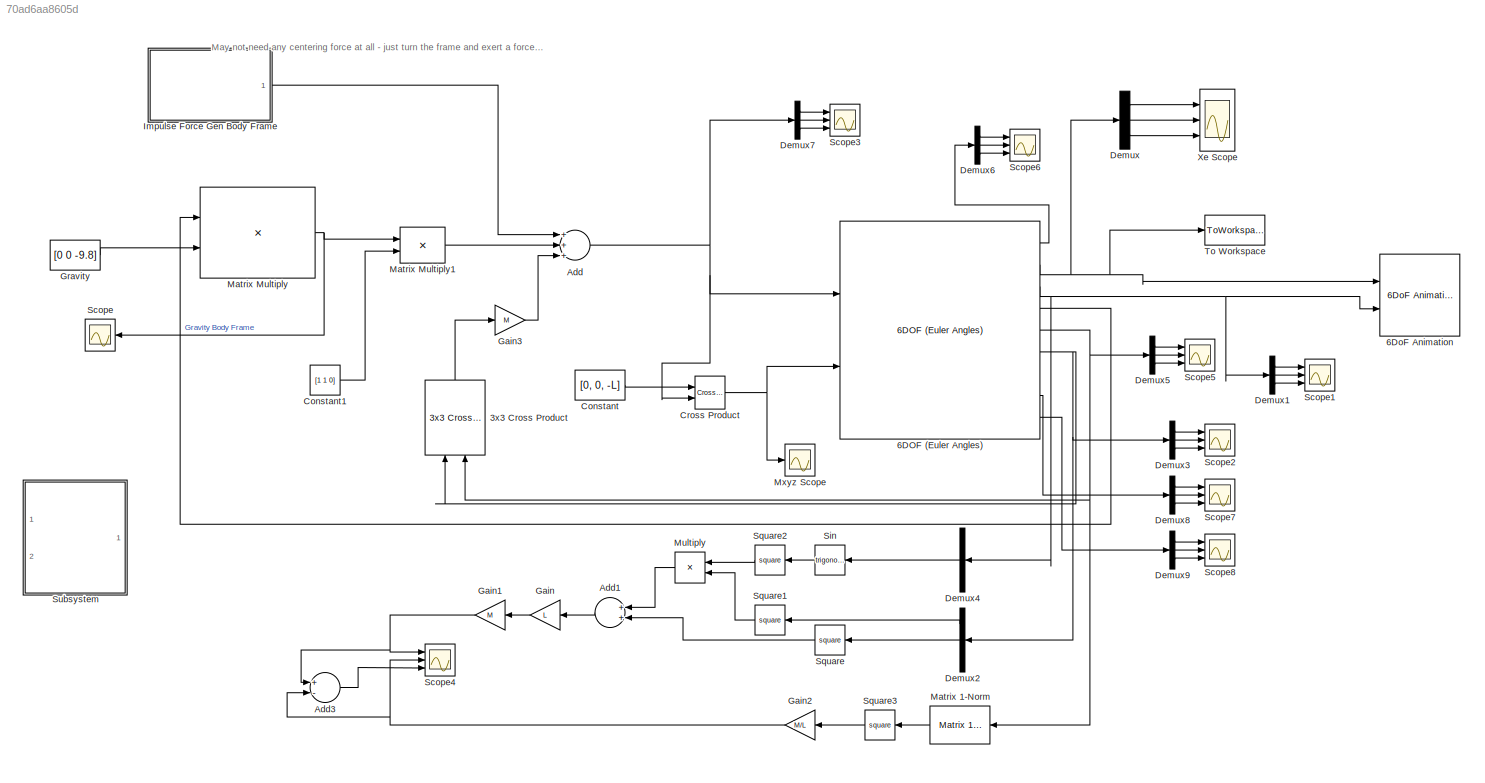
MODEL slx_70ad6aa8605d
KIND model
CONFIG AbsTol = auto
CONFIG EnableMultiTasking = off
CONFIG FixedStep = auto
CONFIG MaxStep = auto
CONFIG MinStep = auto
CONFIG RelTol = 1e-9
CONFIG SampleTimeConstraint = Unconstrained
CONFIG Solver = VariableStepAuto
CONFIG SolverName = VariableStepAuto
CONFIG StartTime = 0.0
CONFIG StopTime = 6
WORKSPACE source: MAT-file member
WORKSPACE H = 0.4
BLOCK [Reference] 3x3 Cross Product  REF=sharedutil/3x3 Cross Product
  Ports = [2, 1]
  SourceBlock = sharedutil/3x3 Cross Product
  SourceProductBaseCode = AE
  SourceProductName = Aerospace Blockset
  SourceType = CrossProduct
BLOCK [Reference] 6DOF (Euler Angles)  REF=shared6dof/6DOF (Euler Angles)
  Ports = [2, 9]
  SourceBlock = shared6dof/6DOF (Euler Angles)
  SourceProductBaseCode = AE
  SourceProductName = Aerospace Blockset
  SourceType = 6DOF EoM (Body Axis)
BLOCK [Reference] 6DoF Animation  REF=aerolibanim/6DoF Animation
  Commented = on
  Ports = [2]
  SourceBlock = aerolibanim/6DoF Animation
  SourceProductBaseCode = AE
  SourceProductName = Aerospace Blockset
  SourceType = 6DoF_Animation
BLOCK [Sum] Add
  InputSameDT = off
  Inputs = +++
  OutDataTypeStr = Inherit: Inherit via internal rule
  Ports = [3, 1]
  SaturateOnIntegerOverflow = off
BLOCK [Sum] Add1
  Commented = on
  InputSameDT = off
  Inputs = 2
  OutDataTypeStr = Inherit: Inherit via internal rule
  Ports = [2, 1]
  SaturateOnIntegerOverflow = off
BLOCK [Sum] Add3
  Commented = on
  InputSameDT = off
  Inputs = +-
  OutDataTypeStr = Inherit: Inherit via internal rule
  Ports = [2, 1]
  SaturateOnIntegerOverflow = off
BLOCK [Constant] Constant
  Value = [0, 0, -L]
BLOCK [Constant] Constant1
  Value = [1 1 0]
BLOCK [Reference] Cross Product  REF=vrlib/Utilities/Cross Product
  Ports = [2, 1]
  SourceBlock = vrlib/Utilities/Cross Product
  SourceProductBaseCode = VR
  SourceProductName = Simulink 3D Animation
  SourceType = Cross Product
BLOCK [Demux] Demux
  DisplayOption = bar
  Outputs = 3
  Ports = [1, 3]
BLOCK [Demux] Demux1
  DisplayOption = bar
  Outputs = 3
  Ports = [1, 3]
BLOCK [Demux] Demux2
  Commented = on
  DisplayOption = bar
  Outputs = 3
  Ports = [1, 3]
BLOCK [Demux] Demux3
  DisplayOption = bar
  Outputs = 3
  Ports = [1, 3]
BLOCK [Demux] Demux4
  Commented = on
  DisplayOption = bar
  Outputs = 3
  Ports = [1, 3]
BLOCK [Demux] Demux5
  DisplayOption = bar
  Outputs = 3
  Ports = [1, 3]
BLOCK [Demux] Demux6
  DisplayOption = bar
  Outputs = 3
  Ports = [1, 3]
BLOCK [Demux] Demux7
  DisplayOption = bar
  Outputs = 3
  Ports = [1, 3]
BLOCK [Demux] Demux8
  DisplayOption = bar
  Outputs = 3
  Ports = [1, 3]
BLOCK [Demux] Demux9
  DisplayOption = bar
  Outputs = 3
  Ports = [1, 3]
BLOCK [Gain] Gain
  Commented = on
  Gain = L
  OutDataTypeStr = Inherit: Inherit via internal rule
  ParamDataTypeStr = Inherit: Inherit via internal rule
  SaturateOnIntegerOverflow = off
BLOCK [Gain] Gain1
  Commented = on
  Gain = M
  OutDataTypeStr = Inherit: Inherit via internal rule
  ParamDataTypeStr = Inherit: Inherit via internal rule
  SaturateOnIntegerOverflow = off
BLOCK [Gain] Gain2
  Commented = on
  Gain = M/L
  OutDataTypeStr = Inherit: Inherit via internal rule
  ParamDataTypeStr = Inherit: Inherit via internal rule
  SaturateOnIntegerOverflow = off
BLOCK [Gain] Gain3
  Gain = M
  OutDataTypeStr = Inherit: Inherit via internal rule
  ParamDataTypeStr = Inherit: Inherit via internal rule
  SaturateOnIntegerOverflow = off
BLOCK [Constant] Gravity
  Value = [0 0 -9.8]
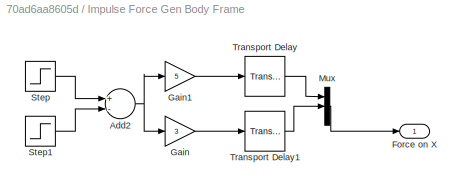
BLOCK [SubSystem] Impulse Force Gen Body Frame
  Ports = [0, 1]
  RequestExecContextInheritance = off
BLOCK [Sum] Impulse Force Gen Body Frame/Add2
  InputSameDT = off
  Inputs = +-
  OutDataTypeStr = Inherit: Inherit via internal rule
  Ports = [2, 1]
  SaturateOnIntegerOverflow = off
BLOCK [Outport] Impulse Force Gen Body Frame/Force on X
  IconDisplay = Port number
BLOCK [Gain] Impulse Force Gen Body Frame/Gain
  Gain = 3
  OutDataTypeStr = Inherit: Inherit via internal rule
  ParamDataTypeStr = Inherit: Inherit via internal rule
  SaturateOnIntegerOverflow = off
BLOCK [Gain] Impulse Force Gen Body Frame/Gain1
  Gain = 5
  OutDataTypeStr = Inherit: Inherit via internal rule
  ParamDataTypeStr = Inherit: Inherit via internal rule
  SaturateOnIntegerOverflow = off
BLOCK [Mux] Impulse Force Gen Body Frame/Mux
  DisplayOption = bar
  Inputs = 3
  Ports = [3, 1]
BLOCK [Step] Impulse Force Gen Body Frame/Step
  SampleTime = 0
BLOCK [Step] Impulse Force Gen Body Frame/Step1
  SampleTime = 0
  Time = 1.5
BLOCK [TransportDelay] Impulse Force Gen Body Frame/Transport Delay
  DelayTime = 0
  Ports = [1, 1]
BLOCK [TransportDelay] Impulse Force Gen Body Frame/Transport Delay1
  DelayTime = 0.3
  Ports = [1, 1]
BLOCK [Reference] Matrix 1-Norm  REF=dspmtrx3/Matrix 
1-Norm
  Commented = on
  Ports = [1, 1]
  SourceBlock = dspmtrx3/Matrix \n1-Norm
  SourceProductBaseCode = DS
  SourceProductName = DSP System Toolbox
  SourceType = Matrix 1-Norm
BLOCK [Product] Matrix Multiply
  InputSameDT = off
  Multiplication = Matrix(*)
  OutDataTypeStr = Inherit: Inherit via internal rule
  Ports = [2, 1]
  RndMeth = Floor
  SaturateOnIntegerOverflow = off
BLOCK [Product] Matrix Multiply1
  InputSameDT = off
  OutDataTypeStr = Inherit: Inherit via internal rule
  Ports = [2, 1]
  RndMeth = Floor
  SaturateOnIntegerOverflow = off
BLOCK [Product] Multiply
  Commented = on
  InputSameDT = off
  OutDataTypeStr = Inherit: Inherit via internal rule
  Ports = [2, 1]
  RndMeth = Floor
  SaturateOnIntegerOverflow = off
BLOCK [Scope] Mxyz Scope
  Floating = off
  NumInputPorts = 1
  Ports = [1]
  ScopeSpecificationString = Simulink.scopes.TimeScopeBlockCfg('CurrentConfiguration', extmgr.ConfigurationSet(extmgr.Configuration('Core','General UI',true),extmgr.Configuration('Core','Source UI',true),extmgr.Configuration('Sources','WiredSimulink',true,'DataLoggingVariableName','ScopeData2'),extmgr.Configuration('Visuals','Time Domain',true,'SerializedDisplays',{struct('MinYLimReal','-9.87171','MaxYLimReal','8.84538','YLab...<+1456ch>
BLOCK [Scope] Scope
  Floating = off
  NumInputPorts = 1
  Ports = [1]
  ScopeSpecificationString = Simulink.scopes.TimeScopeBlockCfg('CurrentConfiguration', extmgr.ConfigurationSet(extmgr.Configuration('Core','General UI',true),extmgr.Configuration('Core','Source UI',true),extmgr.Configuration('Sources','WiredSimulink',true,'DataLoggingVariableName','ScopeData5'),extmgr.Configuration('Visuals','Time Domain',true,'SerializedDisplays',{struct('MinYLimReal','-12.04183','MaxYLimReal','10.37649','YL...<+1509ch>
BLOCK [Scope] Scope1
  Floating = off
  NumInputPorts = 3
  Ports = [3]
  ScopeSpecificationString = Simulink.scopes.TimeScopeBlockCfg('CurrentConfiguration', extmgr.ConfigurationSet(extmgr.Configuration('Core','General UI',true),extmgr.Configuration('Core','Source UI',true),extmgr.Configuration('Sources','WiredSimulink',true,'DataLoggingVariableName','ScopeData1'),extmgr.Configuration('Visuals','Time Domain',true,'SerializedDisplays',{struct('MinYLimReal','-1.21127','MaxYLimReal','1.22326','YLab...<+2749ch>
BLOCK [Scope] Scope2
  Floating = off
  NumInputPorts = 3
  Ports = [3]
  ScopeSpecificationString = Simulink.scopes.TimeScopeBlockCfg('CurrentConfiguration', extmgr.ConfigurationSet(extmgr.Configuration('Core','General UI',true),extmgr.Configuration('Core','Source UI',true),extmgr.Configuration('Sources','WiredSimulink',true,'DataLoggingVariableName','ScopeData2'),extmgr.Configuration('Visuals','Time Domain',true,'SerializedDisplays',{struct('MinYLimReal','-5.38713','MaxYLimReal','5.3728','YLabe...<+2744ch>
BLOCK [Scope] Scope3
  Floating = off
  NumInputPorts = 3
  Ports = [3]
  ScopeSpecificationString = Simulink.scopes.TimeScopeBlockCfg('CurrentConfiguration', extmgr.ConfigurationSet(extmgr.Configuration('Core','General UI',true),extmgr.Configuration('Core','Source UI',true),extmgr.Configuration('Sources','WiredSimulink',true,'DataLoggingVariableName','ScopeData3'),extmgr.Configuration('Visuals','Time Domain',true,'SerializedDisplays',{struct('MinYLimReal','-10.00013','MaxYLimReal','10.14964','YL...<+2751ch>
BLOCK [Scope] Scope4
  Commented = on
  Floating = off
  NumInputPorts = 3
  Ports = [3]
  ScopeSpecificationString = Simulink.scopes.TimeScopeBlockCfg('CurrentConfiguration', extmgr.ConfigurationSet(extmgr.Configuration('Core','General UI',true),extmgr.Configuration('Core','Source UI',true),extmgr.Configuration('Sources','WiredSimulink',true,'DataLoggingVariableName','ScopeData4'),extmgr.Configuration('Visuals','Time Domain',true,'SerializedDisplays',{struct('MinYLimReal','-0.1633','MaxYLimReal','1.46974','YLabe...<+2742ch>
BLOCK [Scope] Scope5
  Floating = off
  NumInputPorts = 3
  Ports = [3]
  ScopeSpecificationString = Simulink.scopes.TimeScopeBlockCfg('CurrentConfiguration', extmgr.ConfigurationSet(extmgr.Configuration('Core','General UI',true),extmgr.Configuration('Core','Source UI',true),extmgr.Configuration('Sources','WiredSimulink',true,'DataLoggingVariableName','ScopeData5'),extmgr.Configuration('Visuals','Time Domain',true,'SerializedDisplays',{struct('MinYLimReal','-2.69649','MaxYLimReal','2.68238','YLab...<+2744ch>
BLOCK [Scope] Scope6
  Floating = off
  NumInputPorts = 3
  Ports = [3]
  ScopeSpecificationString = Simulink.scopes.TimeScopeBlockCfg('CurrentConfiguration', extmgr.ConfigurationSet(extmgr.Configuration('Core','General UI',true),extmgr.Configuration('Core','Source UI',true),extmgr.Configuration('Sources','WiredSimulink',true,'DataLoggingVariableName','ScopeData6'),extmgr.Configuration('Visuals','Time Domain',true,'SerializedDisplays',{struct('MinYLimReal','-2.54776','MaxYLimReal','2.6841','YLabe...<+2742ch>
BLOCK [Scope] Scope7
  Floating = off
  NumInputPorts = 3
  Ports = [3]
  ScopeSpecificationString = Simulink.scopes.TimeScopeBlockCfg('CurrentConfiguration', extmgr.ConfigurationSet(extmgr.Configuration('Core','General UI',true),extmgr.Configuration('Core','Source UI',true),extmgr.Configuration('Sources','WiredSimulink',true,'DataLoggingVariableName','ScopeData7'),extmgr.Configuration('Visuals','Time Domain',true,'SerializedDisplays',{struct('MinYLimReal','-10.00013','MaxYLimReal','10.14964','YL...<+2749ch>
BLOCK [Scope] Scope8
  Floating = off
  NumInputPorts = 3
  Ports = [3]
  ScopeSpecificationString = Simulink.scopes.TimeScopeBlockCfg('CurrentConfiguration', extmgr.ConfigurationSet(extmgr.Configuration('Core','General UI',true),extmgr.Configuration('Core','Source UI',true),extmgr.Configuration('Sources','WiredSimulink',true,'DataLoggingVariableName','ScopeData8'),extmgr.Configuration('Visuals','Time Domain',true,'SerializedDisplays',{struct('MinYLimReal','-10.00013','MaxYLimReal','10.14964','YL...<+2748ch>
BLOCK [Trigonometry] Sin
  Commented = on
  Ports = [1, 1]
BLOCK [Math] Square
  Commented = on
  Operator = square
  Ports = [1, 1]
BLOCK [Math] Square1
  Commented = on
  Operator = square
  Ports = [1, 1]
BLOCK [Math] Square2
  Commented = on
  Operator = square
  Ports = [1, 1]
BLOCK [Math] Square3
  Commented = on
  Operator = square
  Ports = [1, 1]
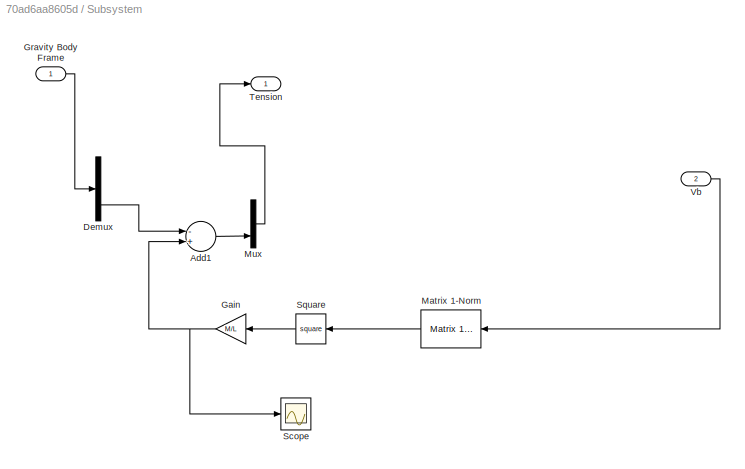
BLOCK [SubSystem] Subsystem
  Commented = on
  Ports = [2, 1]
  RequestExecContextInheritance = off
BLOCK [Sum] Subsystem/Add1
  InputSameDT = off
  Inputs = -+
  OutDataTypeStr = Inherit: Inherit via internal rule
  Ports = [2, 1]
  SaturateOnIntegerOverflow = off
BLOCK [Demux] Subsystem/Demux
  DisplayOption = bar
  Outputs = 3
  Ports = [1, 3]
BLOCK [Gain] Subsystem/Gain
  Gain = M/L
  OutDataTypeStr = Inherit: Inherit via internal rule
  ParamDataTypeStr = Inherit: Inherit via internal rule
  SaturateOnIntegerOverflow = off
BLOCK [Inport] Subsystem/Gravity Body Frame
  IconDisplay = Port number
BLOCK [Reference] Subsystem/Matrix 1-Norm  REF=dspmtrx3/Matrix 
1-Norm
  Ports = [1, 1]
  SourceBlock = dspmtrx3/Matrix \n1-Norm
  SourceProductBaseCode = DS
  SourceProductName = DSP System Toolbox
  SourceType = Matrix 1-Norm
BLOCK [Mux] Subsystem/Mux
  DisplayOption = bar
  Inputs = 3
  Ports = [3, 1]
BLOCK [Scope] Subsystem/Scope
  Floating = off
  NumInputPorts = 1
  Ports = [1]
  ScopeSpecificationString = Simulink.scopes.TimeScopeBlockCfg('CurrentConfiguration', extmgr.ConfigurationSet(extmgr.Configuration('Core','General UI',true),extmgr.Configuration('Core','Source UI',true),extmgr.Configuration('Sources','WiredSimulink',true,'DataLoggingVariableName','ScopeData4'),extmgr.Configuration('Visuals','Time Domain',true,'SerializedDisplays',{struct('MinYLimReal','-5.84738','MaxYLimReal','52.70549','YLa...<+1367ch>
BLOCK [Math] Subsystem/Square
  Operator = square
  Ports = [1, 1]
BLOCK [Outport] Subsystem/Tension
  IconDisplay = Port number
BLOCK [Inport] Subsystem/Vb
  IconDisplay = Port number
  Port = 2
BLOCK [ToWorkspace] To Workspace
  FixptAsFi = on
  MaxDataPoints = inf
  Ports = [1]
  SampleTime = -1
  Save2DSignal = 3-D array (concatenate along third dimension)
  SaveFormat = Timeseries
  VariableName = Xe
BLOCK [Scope] Xe Scope
  Floating = off
  NumInputPorts = 3
  Ports = [3]
  ScopeSpecificationString = Simulink.scopes.TimeScopeBlockCfg('CurrentConfiguration', extmgr.ConfigurationSet(extmgr.Configuration('Core','General UI',true),extmgr.Configuration('Core','Source UI',true),extmgr.Configuration('Sources','WiredSimulink',true),extmgr.Configuration('Visuals','Time Domain',true,'SerializedDisplays',{struct('MinYLimReal','-0.11056','MaxYLimReal','0.12906','YLabelReal','','MinYLimMag','0.00000','MaxY...<+2762ch>
ANNOTATION (root): May not need any centering force at all - just turn the frame and exert a force along the x which will move you up in the inertial frame.
LINE 3x3 Cross Product:1 -> Gain3:1
LINE 6DOF (Euler Angles):1 -> Demux6:1
NET 6DOF (Euler Angles):2 -> 6DoF Animation:1, Demux:1, To Workspace:1
NET 6DOF (Euler Angles):3 -> 6DoF Animation:2, Demux1:1, Demux4:1
LINE 6DOF (Euler Angles):4 -> Matrix Multiply:1
NET 6DOF (Euler Angles):5 -> 3x3 Cross Product:2, Demux5:1, Matrix 1-Norm:1
NET 6DOF (Euler Angles):6 -> 3x3 Cross Product:1, Demux2:1, Demux3:1
LINE 6DOF (Euler Angles):8 -> Demux8:1
LINE 6DOF (Euler Angles):9 -> Demux9:1
LINE Add1:1 -> Gain:1
LINE Add3:1 -> Scope4:3
NET Add:1 -> 6DOF (Euler Angles):1, Cross Product:2, Demux7:1
LINE Constant1:1 -> Matrix Multiply1:2
LINE Constant:1 -> Cross Product:1
NET Cross Product:1 -> 6DOF (Euler Angles):2, Mxyz Scope:1
LINE Demux1:1 -> Scope1:1
LINE Demux1:2 -> Scope1:2
LINE Demux1:3 -> Scope1:3
LINE Demux2:1 -> Square1:1
LINE Demux2:2 -> Square:1
LINE Demux3:1 -> Scope2:1
LINE Demux3:2 -> Scope2:2
LINE Demux3:3 -> Scope2:3
LINE Demux4:2 -> Sin:1
LINE Demux5:1 -> Scope5:1
LINE Demux5:2 -> Scope5:2
LINE Demux5:3 -> Scope5:3
LINE Demux6:1 -> Scope6:1
LINE Demux6:2 -> Scope6:2
LINE Demux6:3 -> Scope6:3
LINE Demux7:1 -> Scope3:1
LINE Demux7:2 -> Scope3:2
LINE Demux7:3 -> Scope3:3
LINE Demux8:1 -> Scope7:1
LINE Demux8:2 -> Scope7:2
LINE Demux8:3 -> Scope7:3
LINE Demux9:1 -> Scope8:1
LINE Demux9:2 -> Scope8:2
LINE Demux9:3 -> Scope8:3
LINE Demux:1 -> Xe Scope:1
LINE Demux:2 -> Xe Scope:2
LINE Demux:3 -> Xe Scope:3
NET Gain1:1 -> Add3:1, Scope4:1
NET Gain2:1 -> Add3:2, Scope4:2
LINE Gain3:1 -> Add:3
LINE Gain:1 -> Gain1:1
LINE Gravity:1 -> Matrix Multiply:2
NET Impulse Force Gen Body Frame/Add2:1 -> Impulse Force Gen Body Frame/Gain1:1, Impulse Force Gen Body Frame/Gain:1
LINE Impulse Force Gen Body Frame/Gain1:1 -> Impulse Force Gen Body Frame/Transport Delay:1
LINE Impulse Force Gen Body Frame/Gain:1 -> Impulse Force Gen Body Frame/Transport Delay1:1
LINE Impulse Force Gen Body Frame/Mux:1 -> Impulse Force Gen Body Frame/Force on X:1
LINE Impulse Force Gen Body Frame/Step1:1 -> Impulse Force Gen Body Frame/Add2:2
LINE Impulse Force Gen Body Frame/Step:1 -> Impulse Force Gen Body Frame/Add2:1
LINE Impulse Force Gen Body Frame/Transport Delay1:1 -> Impulse Force Gen Body Frame/Mux:2
LINE Impulse Force Gen Body Frame/Transport Delay:1 -> Impulse Force Gen Body Frame/Mux:1
LINE Impulse Force Gen Body Frame:1 -> Add:1
LINE Matrix 1-Norm:1 -> Square3:1
LINE Matrix Multiply1:1 -> Add:2
NET Matrix Multiply:1 -> Matrix Multiply1:1, Scope:1
LINE Multiply:1 -> Add1:1
LINE Sin:1 -> Square2:1
LINE Square1:1 -> Multiply:2
LINE Square2:1 -> Multiply:1
LINE Square3:1 -> Gain2:1
LINE Square:1 -> Add1:2
LINE Subsystem/Add1:1 -> Subsystem/Mux:3
LINE Subsystem/Demux:3 -> Subsystem/Add1:1
NET Subsystem/Gain:1 -> Subsystem/Add1:2, Subsystem/Scope:1
LINE Subsystem/Gravity Body Frame:1 -> Subsystem/Demux:1
LINE Subsystem/Matrix 1-Norm:1 -> Subsystem/Square:1
LINE Subsystem/Mux:1 -> Subsystem/Tension:1
LINE Subsystem/Square:1 -> Subsystem/Gain:1
LINE Subsystem/Vb:1 -> Subsystem/Matrix 1-Norm:1
note: NET lines group one-source signal fan-out (src -> all destinations, sorted); 1:1 wires keep LINE
